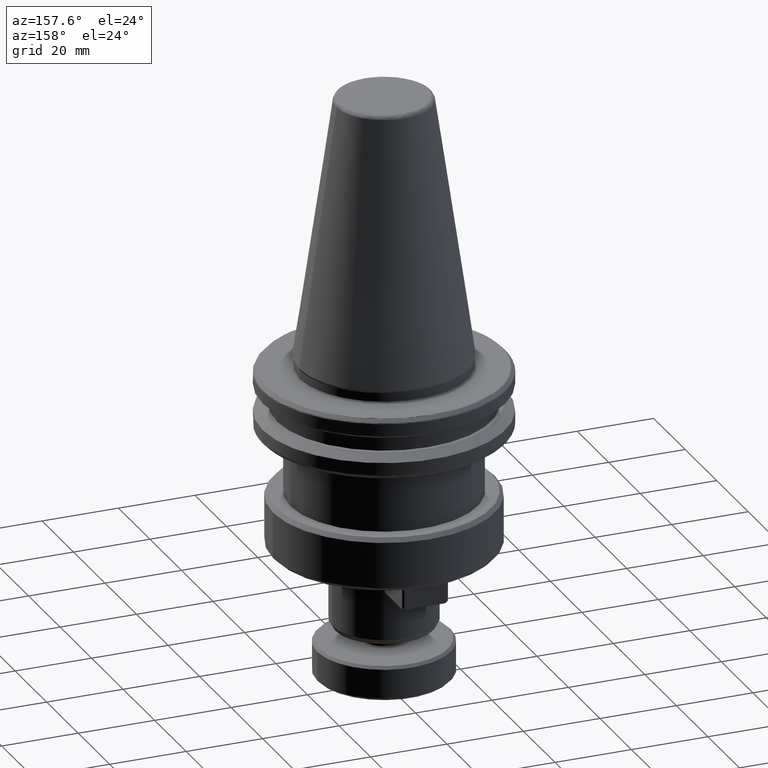
[diagram: clean part render]
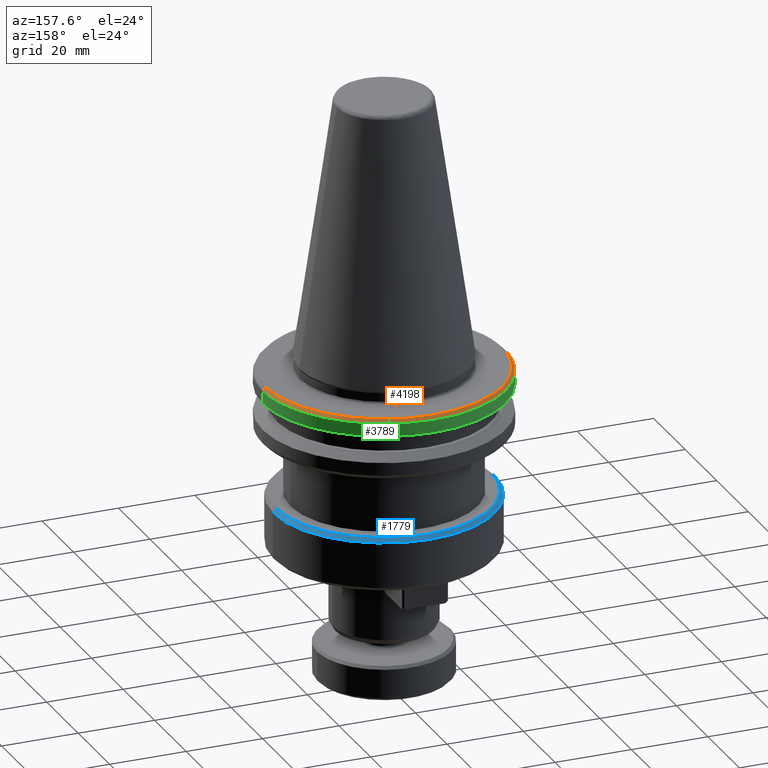
[diagram: same view with three faces highlighted in distinct colors, each labeled with its STEP entity id]
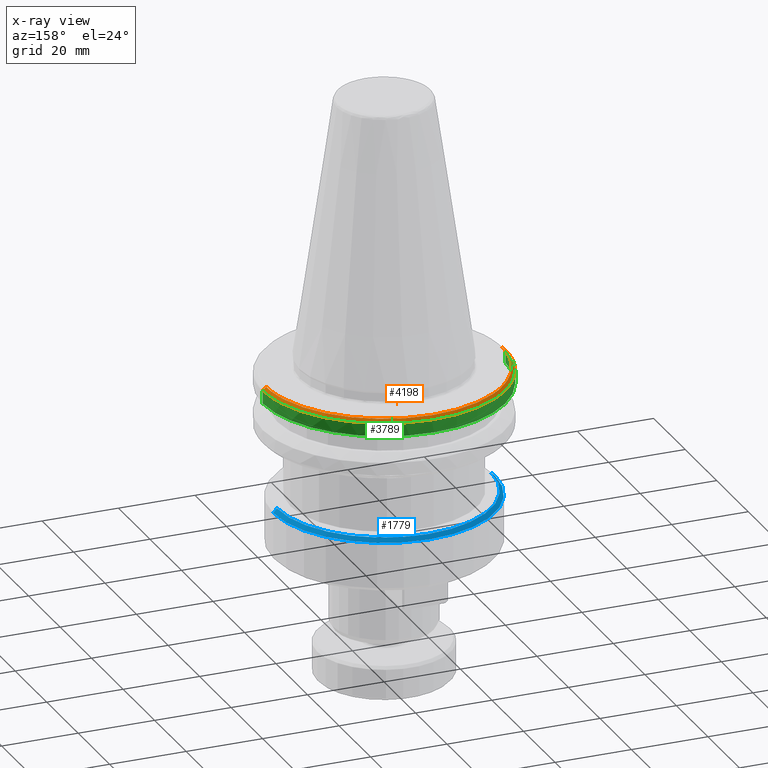
[diagram: x-ray of the same camera — body ghosted, the three highlighted faces saturated]
A machine part, auxiliary view with three faces highlighted in distinct colors.
The next image is the same camera in x-ray (body ghosted, the three faces saturated) — at least one of them is partly hidden behind the body in this view.
Their STEP definitions:

[orange] entity #4198 — the highlighted conical surface has half-angle 45 deg.
#22 = CARTESIAN_POINT ( 'NONE',  ( 0.0000000000000000000, 0.0000000000000000000, -4.082842712474624500 ) ) ;
#48 = DIRECTION ( 'NONE',  ( 1.000000000000000000, 0.0000000000000000000, 0.0000000000000000000 ) ) ;
#51 = DIRECTION ( 'NONE',  ( -0.0000000000000000000, -0.0000000000000000000, 1.000000000000000000 ) ) ;
#52 = CARTESIAN_POINT ( 'NONE',  ( 0.0000000000000000000, 0.0000000000000000000, -3.317157287525379400 ) ) ;
#99 = CIRCLE ( 'NONE', #3333, 30.86715728752538400 ) ;
#148 = DIRECTION ( 'NONE',  ( 0.0000000000000000000, 0.0000000000000000000, -1.000000000000000000 ) ) ;
#171 = DIRECTION ( 'NONE',  ( 1.000000000000000000, 0.0000000000000000000, 0.0000000000000000000 ) ) ;
#179 = DIRECTION ( 'NONE',  ( -0.0000000000000000000, -0.0000000000000000000, 1.000000000000000000 ) ) ;
#181 = CARTESIAN_POINT ( 'NONE',  ( 0.0000000000000000000, 0.0000000000000000000, -3.317157287525379400 ) ) ;
#263 = CONICAL_SURFACE ( 'NONE', #3280, 31.63284271247462300, 0.7853981633974389500 ) ;
#286 = DIRECTION ( 'NONE',  ( -1.000000000000000000, 8.881784197001252300E-016, 2.741965829224553500E-017 ) ) ;
#409 = CIRCLE ( 'NONE', #3872, 31.63284271247463100 ) ;
#419 = DIRECTION ( 'NONE',  ( 1.000000000000000000, 0.0000000000000000000, 0.0000000000000000000 ) ) ;
#498 = CIRCLE ( 'NONE', #4246, 31.63284271247463100 ) ;
#511 = EDGE_CURVE ( 'NONE', #880, #3125, #409, .T. ) ;
#523 = FACE_OUTER_BOUND ( 'NONE', #2395, .T. ) ;
#542 = AXIS2_PLACEMENT_3D ( 'NONE', #52, #51, #48 ) ;
#592 = EDGE_CURVE ( 'NONE', #705, #3093, #3143, .T. ) ;
#594 = CARTESIAN_POINT ( 'NONE',  ( 30.46793370986786400, 8.505395553603404900, -4.082842712474624500 ) ) ;
#670 = CARTESIAN_POINT ( 'NONE',  ( -30.44766929938765500, 8.577655408518413800, -4.082842712474626300 ) ) ;
#673 = CIRCLE ( 'NONE', #1012, 31.63284271247463100 ) ;
#691 = CARTESIAN_POINT ( 'NONE',  ( -31.63284271247462300, 0.0000000000000000000, -4.082842712474624500 ) ) ;
#705 = VERTEX_POINT ( 'NONE', #2612 ) ;
#724 = CARTESIAN_POINT ( 'NONE',  ( -18.49999999999999600, 24.70893358712253000, -3.317157287525381200 ) ) ;
#815 = AXIS2_PLACEMENT_3D ( 'NONE', #4456, #2454, #286 ) ;
#820 = CIRCLE ( 'NONE', #4446, 30.86715728752538400 ) ;
#853 = AXIS2_PLACEMENT_3D ( 'NONE', #22, #2574, #419 ) ;
#880 = VERTEX_POINT ( 'NONE', #1336 ) ;
#931 = CARTESIAN_POINT ( 'NONE',  ( -29.63537456679948400, 8.632842712474612800, -3.317157287525381200 ) ) ;
#1012 = AXIS2_PLACEMENT_3D ( 'NONE', #1217, #1215, #1209 ) ;
#1030 = EDGE_CURVE ( 'NONE', #2030, #880, #3980, .T. ) ;
#1208 = DIRECTION ( 'NONE',  ( 0.7071067811865409100, 8.659560562354851500E-017, -0.7071067811865541200 ) ) ;
#1209 = DIRECTION ( 'NONE',  ( 1.000000000000000000, 0.0000000000000000000, 0.0000000000000000000 ) ) ;
#1215 = DIRECTION ( 'NONE',  ( -0.0000000000000000000, -0.0000000000000000000, 1.000000000000000000 ) ) ;
#1217 = CARTESIAN_POINT ( 'NONE',  ( 0.0000000000000000000, 0.0000000000000000000, -4.082842712474624500 ) ) ;
#1220 = CARTESIAN_POINT ( 'NONE',  ( 31.63284271247462300, 3.873905957576372200E-015, -4.082842712474625400 ) ) ;
#1295 = EDGE_CURVE ( 'NONE', #2030, #705, #4227, .T. ) ;
#1336 = CARTESIAN_POINT ( 'NONE',  ( 31.63284271247462300, 3.873905957576372200E-015, -4.082842712474624500 ) ) ;
#1373 = EDGE_CURVE ( 'NONE', #3093, #2436, #2216, .T. ) ;
#1464 = ORIENTED_EDGE ( 'NONE', *, *, #1295, .F. ) ;
#1537 = ORIENTED_EDGE ( 'NONE', *, *, #1030, .T. ) ;
#1648 = ORIENTED_EDGE ( 'NONE', *, *, #511, .T. ) ;
#1732 = ORIENTED_EDGE ( 'NONE', *, *, #4325, .T. ) ;
#1780 = ORIENTED_EDGE ( 'NONE', *, *, #3690, .T. ) ;
#1794 = VERTEX_POINT ( 'NONE', #931 ) ;
#1836 = ORIENTED_EDGE ( 'NONE', *, *, #3455, .T. ) ;
#1839 = EDGE_CURVE ( 'NONE', #2436, #1794, #99, .T. ) ;
#1899 = ORIENTED_EDGE ( 'NONE', *, *, #2995, .T. ) ;
#1922 = DIRECTION ( 'NONE',  ( -0.7071067811865409100, 0.0000000000000000000, -0.7071067811865541200 ) ) ;
#1928 = CARTESIAN_POINT ( 'NONE',  ( -31.63284271247462300, 0.0000000000000000000, -4.082842712474625400 ) ) ;
#2030 = VERTEX_POINT ( 'NONE', #3945 ) ;
#2033 = ORIENTED_EDGE ( 'NONE', *, *, #2525, .F. ) ;
#2043 = ORIENTED_EDGE ( 'NONE', *, *, #2297, .F. ) ;
#2139 = ORIENTED_EDGE ( 'NONE', *, *, #1839, .F. ) ;
#2145 = ORIENTED_EDGE ( 'NONE', *, *, #1373, .F. ) ;
#2195 = CARTESIAN_POINT ( 'NONE',  ( -25.65904787929901700, 18.50000000000000000, -4.082842712474624500 ) ) ;
#2216 = CIRCLE ( 'NONE', #542, 30.86715728752538400 ) ;
#2234 = VERTEX_POINT ( 'NONE', #2889 ) ;
#2271 = ORIENTED_EDGE ( 'NONE', *, *, #592, .F. ) ;
#2273 = VECTOR ( 'NONE', #1208, 1000.000000000000000 ) ;
#2278 = CARTESIAN_POINT ( 'NONE',  ( -24.70893358712252700, 18.49999999999999300, -3.317157287525379400 ) ) ;
#2297 = EDGE_CURVE ( 'NONE', #1794, #2234, #820, .T. ) ;
#2334 = CARTESIAN_POINT ( 'NONE',  ( 0.0000000000000000000, 0.0000000000000000000, -4.082842712474625400 ) ) ;
#2395 = EDGE_LOOP ( 'NONE', ( #1464, #1537, #1648, #1732, #1780, #1836, #1899, #2033, #2043, #2139, #2145, #2271 ) ) ;
#2436 = VERTEX_POINT ( 'NONE', #2278 ) ;
#2454 = DIRECTION ( 'NONE',  ( -0.0000000000000000000, -0.0000000000000000000, 1.000000000000000000 ) ) ;
#2474 = CARTESIAN_POINT ( 'NONE',  ( -18.49999999999999600, 25.65904787929901700, -4.082842712474624500 ) ) ;
#2525 = EDGE_CURVE ( 'NONE', #2234, #3554, #2848, .T. ) ;
#2574 = DIRECTION ( 'NONE',  ( -0.0000000000000000000, -0.0000000000000000000, 1.000000000000000000 ) ) ;
#2612 = CARTESIAN_POINT ( 'NONE',  ( 29.63537456679947700, 8.632842712474627000, -3.317157287525379400 ) ) ;
#2741 = DIRECTION ( 'NONE',  ( 1.000000000000000000, 0.0000000000000000000, 0.0000000000000000000 ) ) ;
#2745 = DIRECTION ( 'NONE',  ( -0.0000000000000000000, -0.0000000000000000000, 1.000000000000000000 ) ) ;
#2748 = CARTESIAN_POINT ( 'NONE',  ( 0.0000000000000000000, 0.0000000000000000000, -3.317157287525379400 ) ) ;
#2848 = LINE ( 'NONE', #1928, #3764 ) ;
#2889 = CARTESIAN_POINT ( 'NONE',  ( -30.86715728752539100, 0.0000000000000000000, -3.317157287525379400 ) ) ;
#2995 = EDGE_CURVE ( 'NONE', #3107, #3554, #673, .T. ) ;
#3011 = DIRECTION ( 'NONE',  ( 1.000000000000000000, 0.0000000000000000000, 0.0000000000000000000 ) ) ;
#3014 = DIRECTION ( 'NONE',  ( 0.0000000000000000000, 0.0000000000000000000, 1.000000000000000000 ) ) ;
#3025 = CARTESIAN_POINT ( 'NONE',  ( 0.0000000000000000000, 0.0000000000000000000, -3.317157287525382100 ) ) ;
#3093 = VERTEX_POINT ( 'NONE', #724 ) ;
#3107 = VERTEX_POINT ( 'NONE', #670 ) ;
#3125 = VERTEX_POINT ( 'NONE', #594 ) ;
#3143 = CIRCLE ( 'NONE', #4296, 30.86715728752538400 ) ;
#3280 = AXIS2_PLACEMENT_3D ( 'NONE', #2334, #148, #4345 ) ;
#3299 = CIRCLE ( 'NONE', #853, 31.63284271247463100 ) ;
#3333 = AXIS2_PLACEMENT_3D ( 'NONE', #4204, #4201, #4196 ) ;
#3455 = EDGE_CURVE ( 'NONE', #4088, #3107, #498, .T. ) ;
#3554 = VERTEX_POINT ( 'NONE', #691 ) ;
#3690 = EDGE_CURVE ( 'NONE', #4372, #4088, #3299, .T. ) ;
#3764 = VECTOR ( 'NONE', #1922, 1000.000000000000000 ) ;
#3802 = DIRECTION ( 'NONE',  ( -1.000000000000000000, 1.065814103640150100E-014, 0.0000000000000000000 ) ) ;
#3813 = DIRECTION ( 'NONE',  ( -0.0000000000000000000, -0.0000000000000000000, 1.000000000000000000 ) ) ;
#3825 = CIRCLE ( 'NONE', #815, 31.63284271247462300 ) ;
#3872 = AXIS2_PLACEMENT_3D ( 'NONE', #4101, #4097, #4095 ) ;
#3940 = CARTESIAN_POINT ( 'NONE',  ( 0.0000000000000000000, 0.0000000000000000000, -4.082842712474628000 ) ) ;
#3945 = CARTESIAN_POINT ( 'NONE',  ( 30.86715728752539100, 3.780136537094586400E-015, -3.317157287525379400 ) ) ;
#3980 = LINE ( 'NONE', #1220, #2273 ) ;
#4088 = VERTEX_POINT ( 'NONE', #2195 ) ;
#4095 = DIRECTION ( 'NONE',  ( 1.000000000000000000, 0.0000000000000000000, 0.0000000000000000000 ) ) ;
#4097 = DIRECTION ( 'NONE',  ( -0.0000000000000000000, -0.0000000000000000000, 1.000000000000000000 ) ) ;
#4101 = CARTESIAN_POINT ( 'NONE',  ( 0.0000000000000000000, 0.0000000000000000000, -4.082842712474624500 ) ) ;
#4138 = AXIS2_PLACEMENT_3D ( 'NONE', #181, #179, #171 ) ;
#4196 = DIRECTION ( 'NONE',  ( 1.000000000000000000, 0.0000000000000000000, 0.0000000000000000000 ) ) ;
#4198 = ADVANCED_FACE ( 'NONE', ( #523 ), #263, .T. ) ;
#4201 = DIRECTION ( 'NONE',  ( 0.0000000000000000000, 0.0000000000000000000, 1.000000000000000000 ) ) ;
#4204 = CARTESIAN_POINT ( 'NONE',  ( 0.0000000000000000000, 0.0000000000000000000, -3.317157287525383000 ) ) ;
#4227 = CIRCLE ( 'NONE', #4138, 30.86715728752538400 ) ;
#4246 = AXIS2_PLACEMENT_3D ( 'NONE', #3940, #3813, #3802 ) ;
#4296 = AXIS2_PLACEMENT_3D ( 'NONE', #3025, #3014, #3011 ) ;
#4325 = EDGE_CURVE ( 'NONE', #3125, #4372, #3825, .T. ) ;
#4345 = DIRECTION ( 'NONE',  ( -1.000000000000000000, 0.0000000000000000000, 0.0000000000000000000 ) ) ;
#4372 = VERTEX_POINT ( 'NONE', #2474 ) ;
#4446 = AXIS2_PLACEMENT_3D ( 'NONE', #2748, #2745, #2741 ) ;
#4456 = CARTESIAN_POINT ( 'NONE',  ( 0.0000000000000000000, 0.0000000000000000000, -4.082842712474628000 ) ) ;

[blue] entity #1779 — the highlighted conical surface has half-angle 45 deg.
#2 = AXIS2_PLACEMENT_3D ( 'NONE', #3742, #3741, #3721 ) ;
#78 = DIRECTION ( 'NONE',  ( 0.7071067811865474600, 8.659560562354931600E-017, -0.7071067811865475700 ) ) ;
#103 = CARTESIAN_POINT ( 'NONE',  ( 29.00000000000000000, 3.551475717527324000E-015, -37.00000000000000700 ) ) ;
#318 = CARTESIAN_POINT ( 'NONE',  ( 0.0000000000000000000, 0.0000000000000000000, -37.00000000000000700 ) ) ;
#331 = DIRECTION ( 'NONE',  ( 0.0000000000000000000, 0.0000000000000000000, -1.000000000000000000 ) ) ;
#416 = EDGE_CURVE ( 'NONE', #2175, #666, #4230, .T. ) ;
#666 = VERTEX_POINT ( 'NONE', #2822 ) ;
#748 = CARTESIAN_POINT ( 'NONE',  ( 29.00000000000000400, 0.0000000000000000000, -37.00000000000000700 ) ) ;
#1344 = EDGE_CURVE ( 'NONE', #666, #3087, #2321, .T. ) ;
#1387 = CARTESIAN_POINT ( 'NONE',  ( -29.00000000000000400, 3.551475717527324800E-015, -37.00000000000000700 ) ) ;
#1600 = FACE_OUTER_BOUND ( 'NONE', #2113, .T. ) ;
#1779 = ADVANCED_FACE ( 'NONE', ( #1600 ), #2042, .T. ) ;
#2042 = CONICAL_SURFACE ( 'NONE', #3556, 29.00000000000000000, 0.7853981633974482800 ) ;
#2101 = EDGE_CURVE ( 'NONE', #3087, #3374, #3256, .T. ) ;
#2113 = EDGE_LOOP ( 'NONE', ( #2851, #2961, #3072, #3185 ) ) ;
#2175 = VERTEX_POINT ( 'NONE', #2532 ) ;
#2268 = AXIS2_PLACEMENT_3D ( 'NONE', #4330, #4312, #4305 ) ;
#2288 = DIRECTION ( 'NONE',  ( -0.7071067811865474600, 0.0000000000000000000, -0.7071067811865475700 ) ) ;
#2300 = CARTESIAN_POINT ( 'NONE',  ( -29.00000000000000000, 0.0000000000000000000, -37.00000000000000700 ) ) ;
#2321 = LINE ( 'NONE', #103, #3135 ) ;
#2369 = LINE ( 'NONE', #2300, #3307 ) ;
#2422 = EDGE_CURVE ( 'NONE', #2175, #3374, #2369, .T. ) ;
#2532 = CARTESIAN_POINT ( 'NONE',  ( -28.00000000000000000, 0.0000000000000000000, -36.00000000000000700 ) ) ;
#2618 = DIRECTION ( 'NONE',  ( -1.000000000000000000, 0.0000000000000000000, 0.0000000000000000000 ) ) ;
#2822 = CARTESIAN_POINT ( 'NONE',  ( 28.00000000000000000, 3.490243377569956500E-015, -36.00000000000000700 ) ) ;
#2851 = ORIENTED_EDGE ( 'NONE', *, *, #416, .T. ) ;
#2961 = ORIENTED_EDGE ( 'NONE', *, *, #1344, .T. ) ;
#3072 = ORIENTED_EDGE ( 'NONE', *, *, #2101, .T. ) ;
#3087 = VERTEX_POINT ( 'NONE', #748 ) ;
#3135 = VECTOR ( 'NONE', #78, 1000.000000000000000 ) ;
#3185 = ORIENTED_EDGE ( 'NONE', *, *, #2422, .F. ) ;
#3256 = CIRCLE ( 'NONE', #2, 28.99999999999999600 ) ;
#3307 = VECTOR ( 'NONE', #2288, 1000.000000000000000 ) ;
#3374 = VERTEX_POINT ( 'NONE', #1387 ) ;
#3556 = AXIS2_PLACEMENT_3D ( 'NONE', #318, #331, #2618 ) ;
#3721 = DIRECTION ( 'NONE',  ( -1.000000000000000000, 0.0000000000000000000, 0.0000000000000000000 ) ) ;
#3741 = DIRECTION ( 'NONE',  ( -0.0000000000000000000, -0.0000000000000000000, 1.000000000000000000 ) ) ;
#3742 = CARTESIAN_POINT ( 'NONE',  ( 0.0000000000000000000, 0.0000000000000000000, -37.00000000000000700 ) ) ;
#4230 = CIRCLE ( 'NONE', #2268, 28.00000000000000000 ) ;
#4305 = DIRECTION ( 'NONE',  ( -1.000000000000000000, 0.0000000000000000000, 0.0000000000000000000 ) ) ;
#4312 = DIRECTION ( 'NONE',  ( 0.0000000000000000000, 0.0000000000000000000, -1.000000000000000000 ) ) ;
#4330 = CARTESIAN_POINT ( 'NONE',  ( 0.0000000000000000000, 0.0000000000000000000, -36.00000000000000700 ) ) ;

[green] entity #3789 — the highlighted cylindrical surface (partial cylindrical patch) has radius 31.75 mm, axis along (0, 0, 1).
#21 = VERTEX_POINT ( 'NONE', #3003 ) ;
#85 = DIRECTION ( 'NONE',  ( 1.000000000000000000, 0.0000000000000000000, 0.0000000000000000000 ) ) ;
#90 = DIRECTION ( 'NONE',  ( -0.0000000000000000000, -0.0000000000000000000, 1.000000000000000000 ) ) ;
#100 = CARTESIAN_POINT ( 'NONE',  ( 0.0000000000000000000, 0.0000000000000000000, -4.365685424949320200 ) ) ;
#199 = DIRECTION ( 'NONE',  ( 0.0000000000000000000, 0.0000000000000000000, 1.000000000000000000 ) ) ;
#208 = VERTEX_POINT ( 'NONE', #2127 ) ;
#271 = CARTESIAN_POINT ( 'NONE',  ( 31.75000000000000000, 0.0000000000000000000, -4.365685424949320200 ) ) ;
#275 = AXIS2_PLACEMENT_3D ( 'NONE', #100, #90, #85 ) ;
#284 = CARTESIAN_POINT ( 'NONE',  ( -31.75000000000000000, 3.888253587292846500E-015, 113.5216080541959500 ) ) ;
#294 = DIRECTION ( 'NONE',  ( 0.0000000000000000000, 0.0000000000000000000, 1.000000000000000000 ) ) ;
#401 = VERTEX_POINT ( 'NONE', #4410 ) ;
#441 = LINE ( 'NONE', #1573, #4060 ) ;
#506 = VERTEX_POINT ( 'NONE', #4191 ) ;
#519 = CIRCLE ( 'NONE', #275, 31.75000000000000000 ) ;
#547 = AXIS2_PLACEMENT_3D ( 'NONE', #3154, #1064, #3508 ) ;
#763 = VECTOR ( 'NONE', #294, 1000.000000000000000 ) ;
#921 = AXIS2_PLACEMENT_3D ( 'NONE', #1196, #1190, #1189 ) ;
#979 = DIRECTION ( 'NONE',  ( 1.000000000000000000, 0.0000000000000000000, 0.0000000000000000000 ) ) ;
#1009 = ORIENTED_EDGE ( 'NONE', *, *, #1039, .T. ) ;
#1039 = EDGE_CURVE ( 'NONE', #2333, #401, #3203, .T. ) ;
#1064 = DIRECTION ( 'NONE',  ( 0.0000000000000000000, 0.0000000000000000000, 1.000000000000000000 ) ) ;
#1129 = DIRECTION ( 'NONE',  ( 1.000000000000000000, 0.0000000000000000000, 0.0000000000000000000 ) ) ;
#1174 = CARTESIAN_POINT ( 'NONE',  ( 0.0000000000000000000, 0.0000000000000000000, -4.365685424949320200 ) ) ;
#1177 = DIRECTION ( 'NONE',  ( -0.0000000000000000000, -0.0000000000000000000, 1.000000000000000000 ) ) ;
#1189 = DIRECTION ( 'NONE',  ( 1.000000000000000000, 0.0000000000000000000, 0.0000000000000000000 ) ) ;
#1190 = DIRECTION ( 'NONE',  ( 0.0000000000000000000, 0.0000000000000000000, 1.000000000000000000 ) ) ;
#1194 = CIRCLE ( 'NONE', #547, 31.75000000000000000 ) ;
#1196 = CARTESIAN_POINT ( 'NONE',  ( 0.0000000000000000000, 0.0000000000000000000, -7.578163357943284800 ) ) ;
#1210 = ORIENTED_EDGE ( 'NONE', *, *, #1214, .T. ) ;
#1214 = EDGE_CURVE ( 'NONE', #401, #1642, #2547, .T. ) ;
#1234 = FACE_OUTER_BOUND ( 'NONE', #3604, .T. ) ;
#1321 = ORIENTED_EDGE ( 'NONE', *, *, #1335, .F. ) ;
#1335 = EDGE_CURVE ( 'NONE', #506, #1642, #519, .T. ) ;
#1480 = AXIS2_PLACEMENT_3D ( 'NONE', #1174, #1177, #1129 ) ;
#1518 = EDGE_CURVE ( 'NONE', #506, #2036, #1897, .T. ) ;
#1542 = ORIENTED_EDGE ( 'NONE', *, *, #1518, .T. ) ;
#1573 = CARTESIAN_POINT ( 'NONE',  ( 31.75000000000000000, 0.0000000000000000000, 113.5216080541959500 ) ) ;
#1640 = EDGE_CURVE ( 'NONE', #21, #2036, #3419, .T. ) ;
#1642 = VERTEX_POINT ( 'NONE', #1781 ) ;
#1758 = AXIS2_PLACEMENT_3D ( 'NONE', #4194, #4140, #3881 ) ;
#1770 = VERTEX_POINT ( 'NONE', #271 ) ;
#1781 = CARTESIAN_POINT ( 'NONE',  ( -31.75000000000000000, 3.888253587292846500E-015, -4.365685424949320200 ) ) ;
#1893 = DIRECTION ( 'NONE',  ( 0.0000000000000000000, 0.0000000000000000000, 1.000000000000000000 ) ) ;
#1897 = CIRCLE ( 'NONE', #4477, 31.75000000000000000 ) ;
#2005 = ORIENTED_EDGE ( 'NONE', *, *, #1640, .F. ) ;
#2036 = VERTEX_POINT ( 'NONE', #3914 ) ;
#2127 = CARTESIAN_POINT ( 'NONE',  ( 31.75000000000000000, 0.0000000000000000000, -7.578163357943284800 ) ) ;
#2163 = ORIENTED_EDGE ( 'NONE', *, *, #3249, .T. ) ;
#2333 = VERTEX_POINT ( 'NONE', #2730 ) ;
#2370 = VERTEX_POINT ( 'NONE', #2687 ) ;
#2376 = ORIENTED_EDGE ( 'NONE', *, *, #3472, .F. ) ;
#2381 = DIRECTION ( 'NONE',  ( 1.000000000000000000, 0.0000000000000000000, 0.0000000000000000000 ) ) ;
#2491 = ORIENTED_EDGE ( 'NONE', *, *, #3728, .F. ) ;
#2499 = AXIS2_PLACEMENT_3D ( 'NONE', #3425, #199, #979 ) ;
#2503 = DIRECTION ( 'NONE',  ( 1.000000000000000000, 0.0000000000000000000, 0.0000000000000000000 ) ) ;
#2507 = DIRECTION ( 'NONE',  ( -0.0000000000000000000, -0.0000000000000000000, -1.000000000000000000 ) ) ;
#2547 = LINE ( 'NONE', #284, #763 ) ;
#2616 = DIRECTION ( 'NONE',  ( -0.0000000000000000000, -0.0000000000000000000, 1.000000000000000000 ) ) ;
#2637 = CARTESIAN_POINT ( 'NONE',  ( 0.0000000000000000000, 0.0000000000000000000, -4.365685424949320200 ) ) ;
#2638 = CIRCLE ( 'NONE', #1758, 31.75000000000000000 ) ;
#2687 = CARTESIAN_POINT ( 'NONE',  ( 30.56296919415016300, 8.600431037885712700, -4.365685424949320200 ) ) ;
#2708 = ORIENTED_EDGE ( 'NONE', *, *, #4303, .T. ) ;
#2730 = CARTESIAN_POINT ( 'NONE',  ( 3.888253587292846500E-015, 31.75000000000000000, -7.578163357943284800 ) ) ;
#2894 = CARTESIAN_POINT ( 'NONE',  ( 0.0000000000000000000, 0.0000000000000000000, -4.365685424949236700 ) ) ;
#3003 = CARTESIAN_POINT ( 'NONE',  ( -18.49999999999999600, 25.80334280669851700, -4.365685424949320200 ) ) ;
#3154 = CARTESIAN_POINT ( 'NONE',  ( 0.0000000000000000000, 0.0000000000000000000, -7.578163357943284800 ) ) ;
#3203 = CIRCLE ( 'NONE', #921, 31.75000000000000000 ) ;
#3249 = EDGE_CURVE ( 'NONE', #21, #2370, #2638, .T. ) ;
#3361 = CYLINDRICAL_SURFACE ( 'NONE', #2499, 31.75000000000000000 ) ;
#3419 = CIRCLE ( 'NONE', #1480, 31.75000000000000000 ) ;
#3425 = CARTESIAN_POINT ( 'NONE',  ( 0.0000000000000000000, 0.0000000000000000000, 113.5216080541959500 ) ) ;
#3472 = EDGE_CURVE ( 'NONE', #1770, #2370, #4010, .T. ) ;
#3508 = DIRECTION ( 'NONE',  ( 1.000000000000000000, 0.0000000000000000000, 0.0000000000000000000 ) ) ;
#3604 = EDGE_LOOP ( 'NONE', ( #1009, #1210, #1321, #1542, #2005, #2163, #2376, #2491, #2708 ) ) ;
#3728 = EDGE_CURVE ( 'NONE', #208, #1770, #441, .T. ) ;
#3789 = ADVANCED_FACE ( 'NONE', ( #1234 ), #3361, .T. ) ;
#3881 = DIRECTION ( 'NONE',  ( 1.000000000000000000, -1.776356839400250500E-015, 0.0000000000000000000 ) ) ;
#3914 = CARTESIAN_POINT ( 'NONE',  ( -25.80334280669851700, 18.50000000000000000, -4.365685424949320200 ) ) ;
#4010 = CIRCLE ( 'NONE', #4445, 31.75000000000000000 ) ;
#4060 = VECTOR ( 'NONE', #1893, 1000.000000000000000 ) ;
#4140 = DIRECTION ( 'NONE',  ( -0.0000000000000000000, -0.0000000000000000000, -1.000000000000000000 ) ) ;
#4191 = CARTESIAN_POINT ( 'NONE',  ( -30.52966748735167000, 8.717907037342303800, -4.365685424949236700 ) ) ;
#4194 = CARTESIAN_POINT ( 'NONE',  ( 0.0000000000000000000, 0.0000000000000000000, -4.365685424949320200 ) ) ;
#4303 = EDGE_CURVE ( 'NONE', #208, #2333, #1194, .T. ) ;
#4410 = CARTESIAN_POINT ( 'NONE',  ( -31.75000000000000000, 3.888253587292846500E-015, -7.578163357943284800 ) ) ;
#4445 = AXIS2_PLACEMENT_3D ( 'NONE', #2637, #2616, #2381 ) ;
#4477 = AXIS2_PLACEMENT_3D ( 'NONE', #2894, #2507, #2503 ) ;